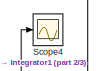
[diagram: root canvas - part 1/3, top right region]
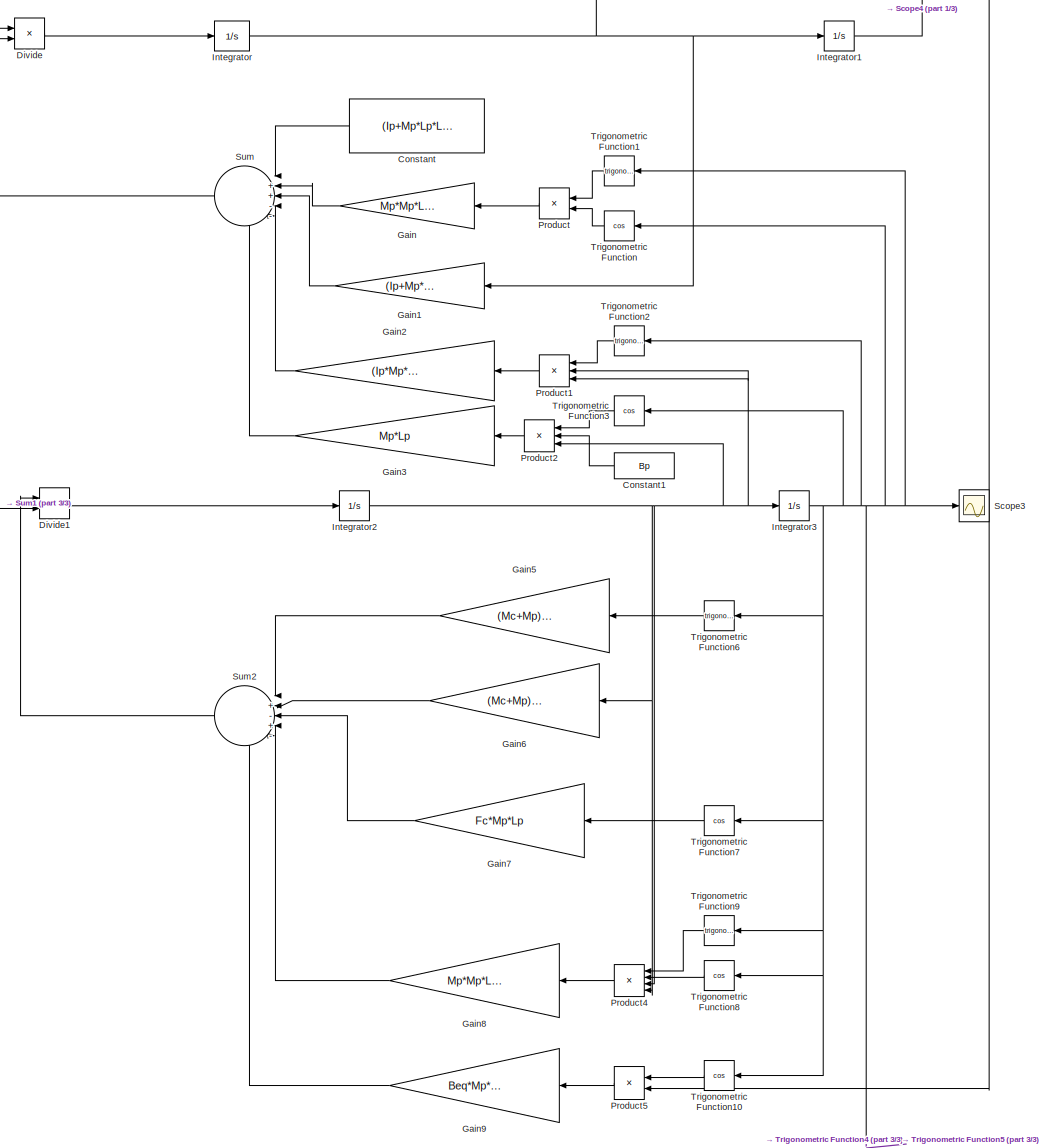
[diagram: root canvas - part 2/3, right side, full height]
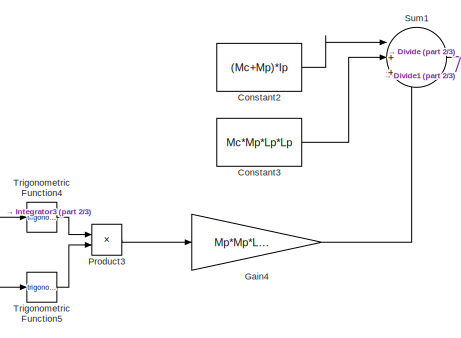
[diagram: root canvas - part 3/3, middle left region]
MODEL slx_29135427518a
KIND model
CONFIG AbsTol = auto
CONFIG EnableMultiTasking = off
CONFIG FixedStep = auto
CONFIG MaxStep = auto
CONFIG MinStep = auto
CONFIG RelTol = 1e-3
CONFIG SampleTimeConstraint = Unconstrained
CONFIG SolverName = VariableStepAuto
CONFIG StartTime = 0.0
CONFIG StopTime = 10.0
BLOCK [Constant] Constant
  NameLocation = top
  Value = (Ip+Mp*Lp*Lp)*Fc
BLOCK [Constant] Constant1
  NameLocation = top
  Value = Bp
BLOCK [Constant] Constant2
  Value = (Mc+Mp)*Ip
BLOCK [Constant] Constant3
  Value = Mc*Mp*Lp*Lp
BLOCK [Product] Divide
  Inputs = */
BLOCK [Product] Divide1
  Inputs = */
BLOCK [Gain] Gain
  Gain = Mp*Mp*Lp*Lp*g
  NameLocation = top
BLOCK [Gain] Gain1
  Gain = (Ip+Mp*Lp*Lp)*Beq
  NameLocation = top
BLOCK [Gain] Gain2
  Gain = (Ip*Mp*Lp-Mp*Mp*Lp*Lp*Lp)
  NameLocation = top
BLOCK [Gain] Gain3
  Gain = Mp*Lp
  NameLocation = top
BLOCK [Gain] Gain4
  Gain = Mp*Mp*Lp*Lp
BLOCK [Gain] Gain5
  Gain = (Mc+Mp)*Mp*g*Lp
  NameLocation = top
BLOCK [Gain] Gain6
  Gain = (Mc+Mp)*Bp
  NameLocation = top
BLOCK [Gain] Gain7
  Gain = Fc*Mp*Lp
  NameLocation = top
BLOCK [Gain] Gain8
  Gain = Mp*Mp*Lp*Lp
  NameLocation = top
BLOCK [Gain] Gain9
  Gain = Beq*Mp*Lp
  NameLocation = top
BLOCK [Integrator] Integrator
BLOCK [Integrator] Integrator1
BLOCK [Integrator] Integrator2
BLOCK [Integrator] Integrator3
  InitialCondition = pi/180
BLOCK [Product] Product
  NameLocation = top
BLOCK [Product] Product1
  Inputs = 3
  NameLocation = top
BLOCK [Product] Product2
  Inputs = 3
  NameLocation = top
BLOCK [Product] Product3
BLOCK [Product] Product4
  Inputs = 4
  NameLocation = top
BLOCK [Product] Product5
  NameLocation = top
BLOCK [Scope] Scope3
  ActiveDisplayYMaximum = 110.84366141051312
  ActiveDisplayYMinimum = -12.296569831701518
  ContainerLayout = {"WindowBounds":[651,1785,315,129],"gridDimensions":{"w":1,"h":1},"tileCount":1,"tileCoverage":1,"columnWeights":1,"rowWeights":1,"tileOccupancy":{"children":[{"id":"/Scope3"},{"id":"/Scope4"}]}}
  DataLoggingVariableName = ScopeData3
  Floating = off
  GraphicalSettings = {"Style":{"BackgroundColor":[0.12941176470588237,0.12941176470588237,0.12941176470588237],"AxesColor":[0.07058823529411765,0.07058823529411765,0.07058823529411765],"LabelsColor":[0.8509803921568627,0.8509803921568627,0.8509803921568627],"PreserveColors":false,"Visible":[true],"LineStyle":["-"],"LineWidth":[1.5],"BarWidth":[0.9],"LineColor":["auto"],"LineFaceAlpha":[1],"LineEdgeAlpha":[1],"Marker":...<+2006ch>
  MultipleDisplayCache = [{"MaxYLimMag":110.84366141051312,"MaxYLimReal":110.84366141051312,"MinYLimMag":0,"MinYLimReal":-12.296569831701518,"PlotAsMagnitudePhase":false,"ShowGrid":true,"ShowLegend":false,"Title":"%<SignalLabel>","YLabel":""}]
  NumInputPorts = 1
  Visible = on
  WasSavedAsWebScope = on
  WindowPosition = [413.000000,-279.000000,1216.000000,680.000000,]
BLOCK [Scope] Scope4
  ActiveDisplayYMaximum = 0.17369346796666787
  ActiveDisplayYMinimum = -0.019299274218518649
  ContainerLayout = {"WindowBounds":[651,1785,315,129],"gridDimensions":{"w":1,"h":1},"tileCount":1,"tileCoverage":1,"columnWeights":1,"rowWeights":1,"tileOccupancy":{"children":[{"id":"/Scope3"},{"id":"/Scope4"}]}}
  DataLoggingVariableName = ScopeData4
  Floating = off
  GraphicalSettings = {"Style":{"BackgroundColor":[0.12941176470588237,0.12941176470588237,0.12941176470588237],"AxesColor":[0.07058823529411765,0.07058823529411765,0.07058823529411765],"LabelsColor":[0.8509803921568627,0.8509803921568627,0.8509803921568627],"PreserveColors":false,"Visible":[true],"LineStyle":["-"],"LineWidth":[1.5],"BarWidth":[0.9],"LineColor":["auto"],"LineFaceAlpha":[1],"LineEdgeAlpha":[1],"Marker":...<+2012ch>
  MultipleDisplayCache = [{"MaxYLimMag":0.17369346796666787,"MaxYLimReal":0.17369346796666787,"MinYLimMag":0,"MinYLimReal":-0.019299274218518649,"PlotAsMagnitudePhase":false,"ShowGrid":true,"ShowLegend":false,"Title":"%<SignalLabel>","YLabel":""}]
  NumInputPorts = 1
  Visible = on
  WasSavedAsWebScope = on
  WindowPosition = [413.000000,-279.000000,1216.000000,680.000000,]
BLOCK [Sum] Sum
  Inputs = |++---
  NameLocation = top
BLOCK [Sum] Sum1
  Inputs = |+++
BLOCK [Sum] Sum2
  Inputs = |+-+--
  NameLocation = top
BLOCK [Trigonometry] Trigonometric Function
  NameLocation = top
  Operator = cos
BLOCK [Trigonometry] Trigonometric Function1
  NameLocation = top
BLOCK [Trigonometry] Trigonometric Function10
  NameLocation = top
  Operator = cos
BLOCK [Trigonometry] Trigonometric Function2
  NameLocation = top
BLOCK [Trigonometry] Trigonometric Function3
  NameLocation = top
  Operator = cos
BLOCK [Trigonometry] Trigonometric Function4
BLOCK [Trigonometry] Trigonometric Function5
BLOCK [Trigonometry] Trigonometric Function6
  NameLocation = top
BLOCK [Trigonometry] Trigonometric Function7
  NameLocation = top
  Operator = cos
BLOCK [Trigonometry] Trigonometric Function8
  NameLocation = top
  Operator = cos
BLOCK [Trigonometry] Trigonometric Function9
  NameLocation = top
LINE Constant1:1 -> Product2:2
LINE Constant2:1 -> Sum1:1
LINE Constant3:1 -> Sum1:2
LINE Constant:1 -> Sum:1
LINE Divide1:1 -> Integrator2:1
LINE Divide:1 -> Integrator:1
LINE Gain1:1 -> Sum:3
LINE Gain2:1 -> Sum:4
LINE Gain3:1 -> Sum:5
LINE Gain4:1 -> Sum1:3
LINE Gain5:1 -> Sum2:1
LINE Gain6:1 -> Sum2:2
LINE Gain7:1 -> Sum2:3
LINE Gain8:1 -> Sum2:4
LINE Gain9:1 -> Sum2:5
LINE Gain:1 -> Sum:2
LINE Integrator1:1 -> Scope4:1
NET Integrator2:1 -> Gain6:1, Integrator3:1, Product1:2, Product1:3, Product2:3, Product4:3, Product4:4
NET Integrator3:1 -> Scope3:1, Trigonometric Function10:1, Trigonometric Function1:1, Trigonometric Function2:1, Trigonometric Function3:1, Trigonometric Function4:1, Trigonometric Function5:1, Trigonometric Function6:1, Trigonometric Function7:1, Trigonometric Function8:1, Trigonometric Function9:1, Trigonometric Function:1
NET Integrator:1 -> Gain1:1, Integrator1:1, Product5:2
LINE Product1:1 -> Gain2:1
LINE Product2:1 -> Gain3:1
LINE Product3:1 -> Gain4:1
LINE Product4:1 -> Gain8:1
LINE Product5:1 -> Gain9:1
LINE Product:1 -> Gain:1
NET Sum1:1 -> Divide1:2, Divide:2
LINE Sum2:1 -> Divide1:1
LINE Sum:1 -> Divide:1
LINE Trigonometric Function10:1 -> Product5:1
LINE Trigonometric Function1:1 -> Product:1
LINE Trigonometric Function2:1 -> Product1:1
LINE Trigonometric Function3:1 -> Product2:1
LINE Trigonometric Function4:1 -> Product3:1
LINE Trigonometric Function5:1 -> Product3:2
LINE Trigonometric Function6:1 -> Gain5:1
LINE Trigonometric Function7:1 -> Gain7:1
LINE Trigonometric Function8:1 -> Product4:2
LINE Trigonometric Function9:1 -> Product4:1
LINE Trigonometric Function:1 -> Product:2
note: NET lines group one-source signal fan-out (src -> all destinations, sorted); 1:1 wires keep LINE
